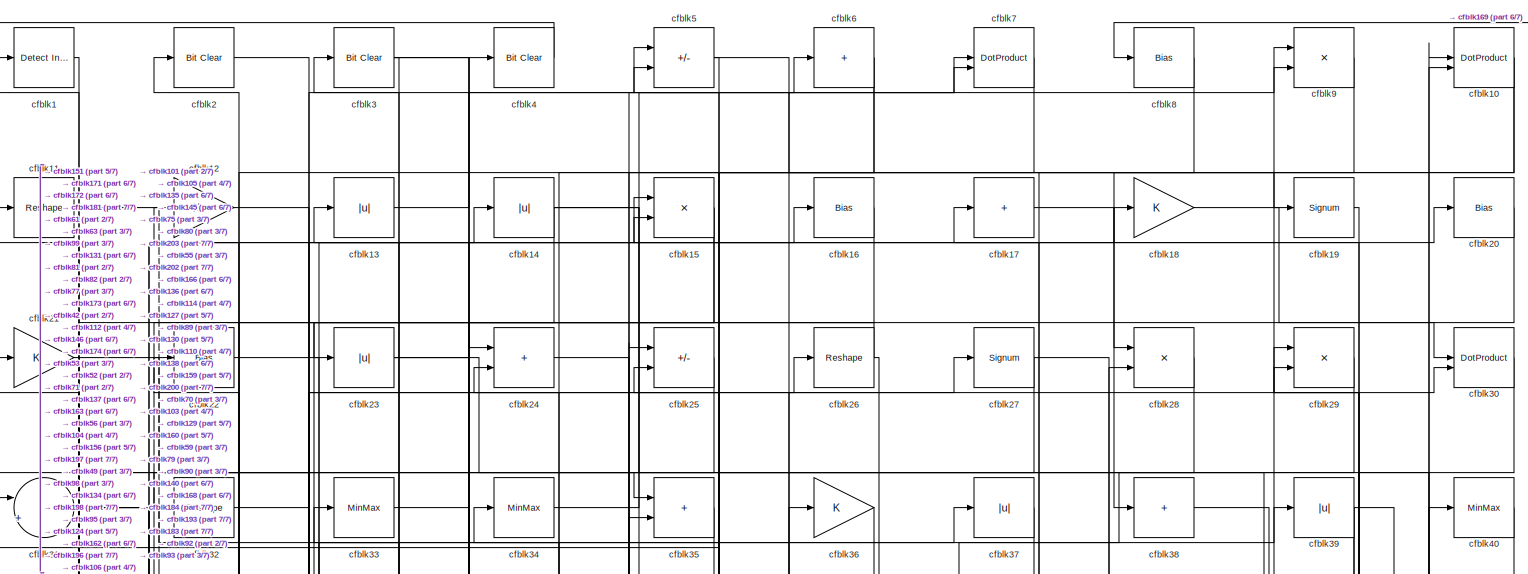
[diagram: root canvas - part 1/7, full width, top band]
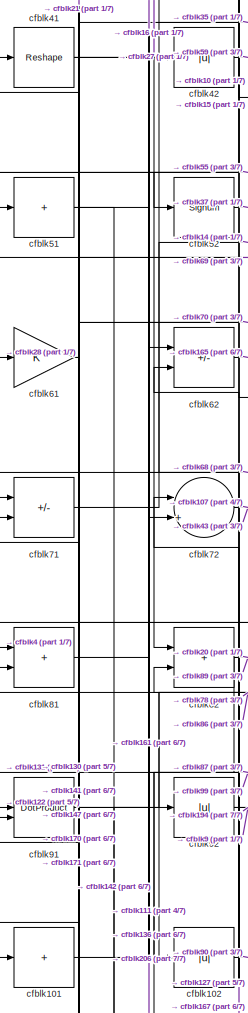
[diagram: root canvas - part 2/7, middle left region]
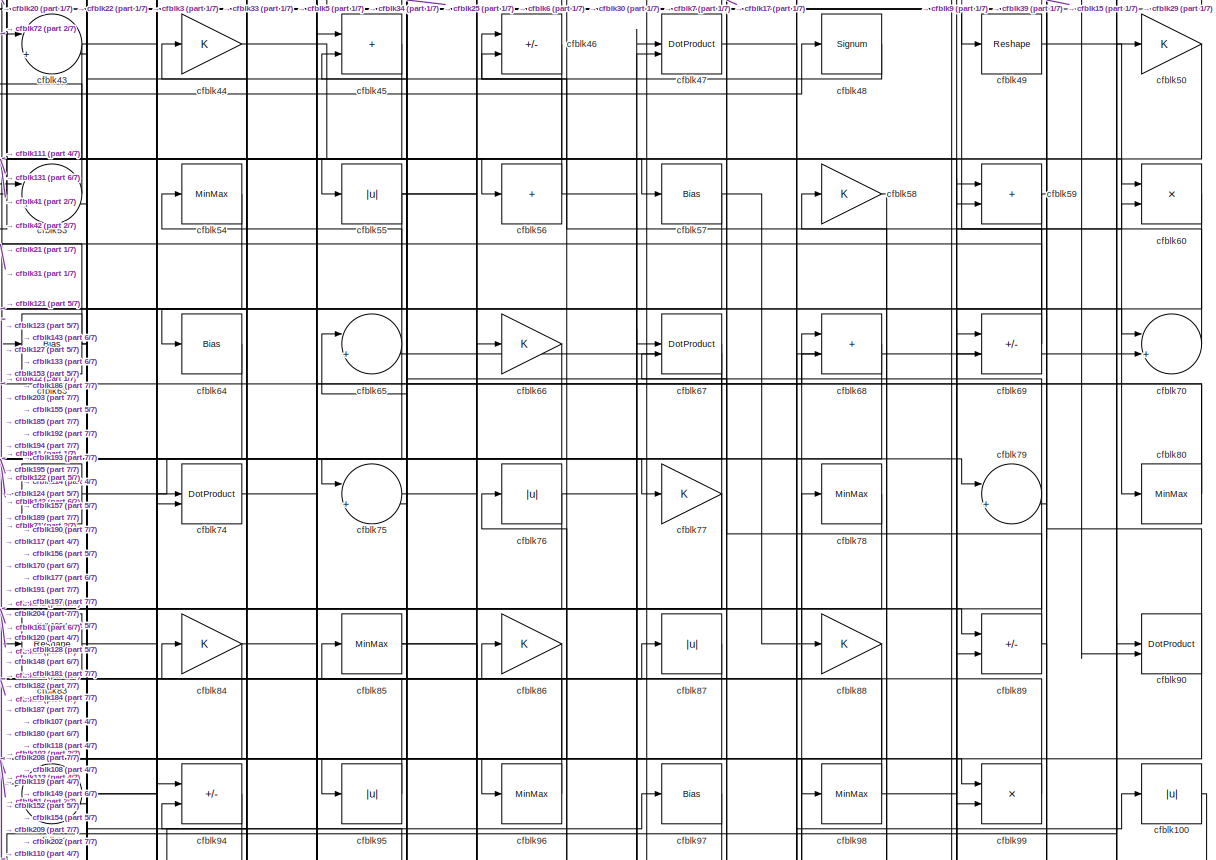
[diagram: root canvas - part 3/7, full width, middle band]
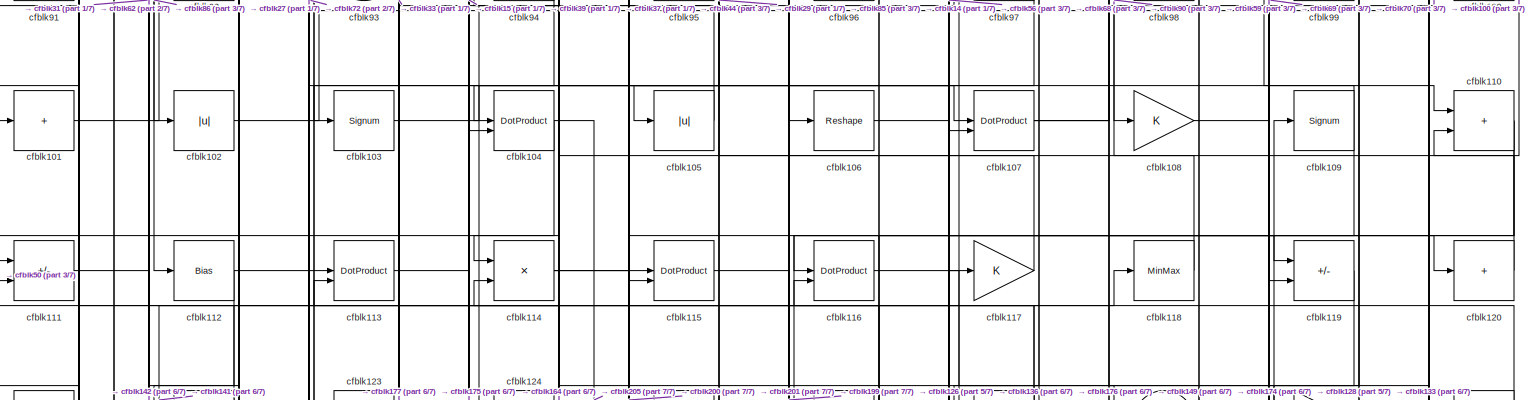
[diagram: root canvas - part 4/7, full width, middle band]
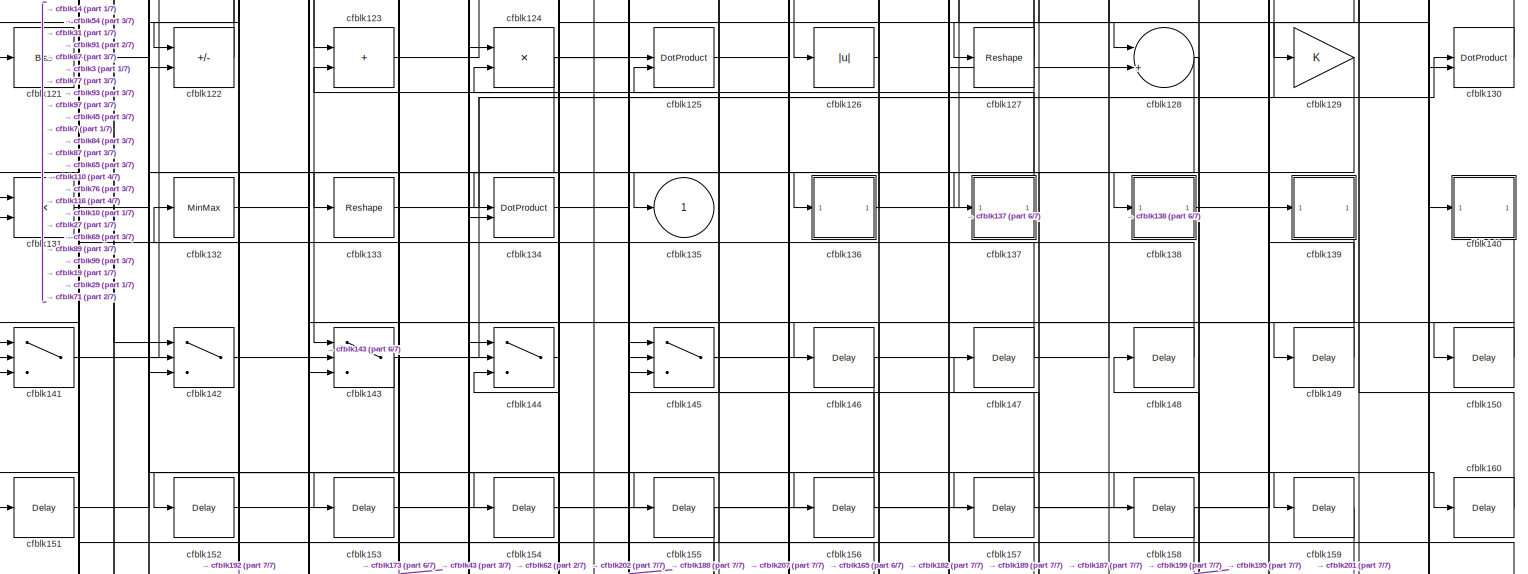
[diagram: root canvas - part 5/7, full width, bottom band]
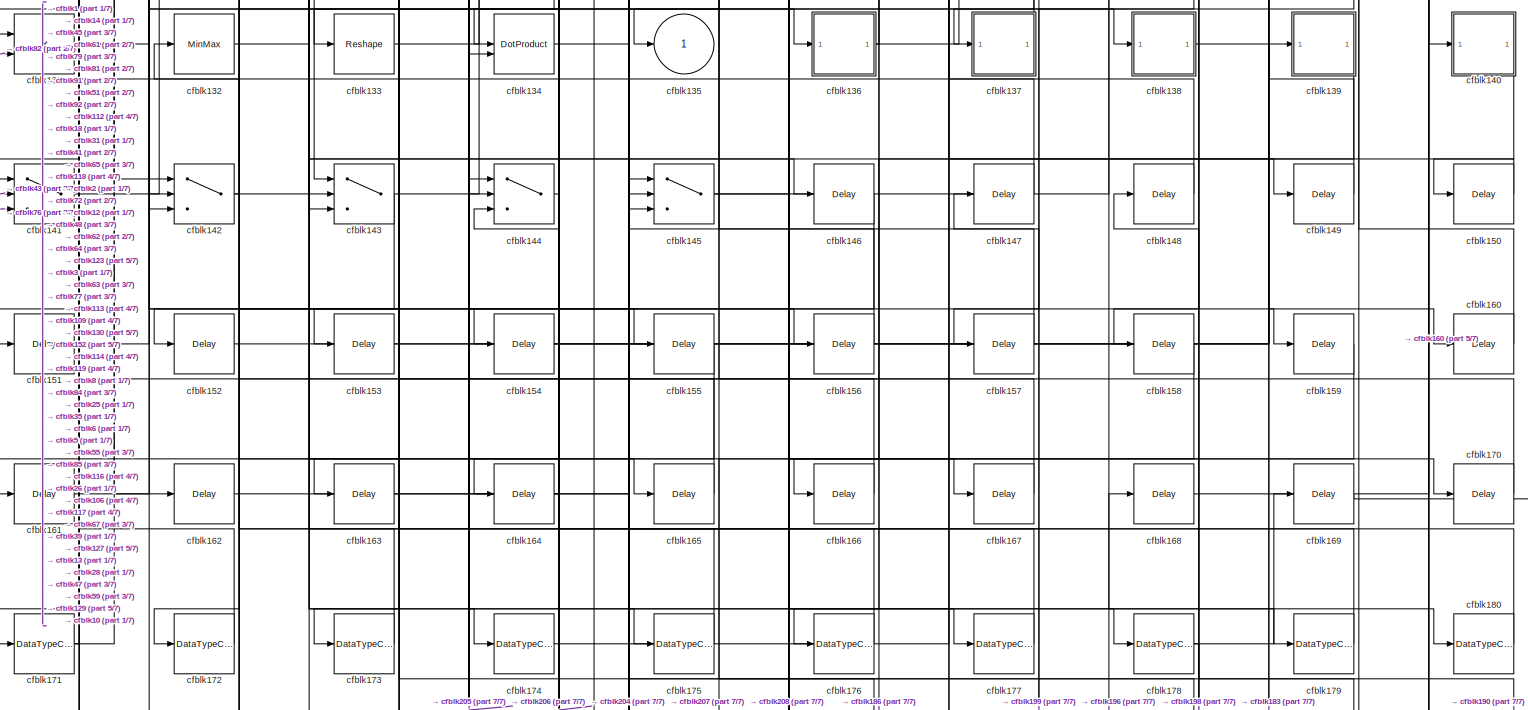
[diagram: root canvas - part 6/7, full width, bottom band]
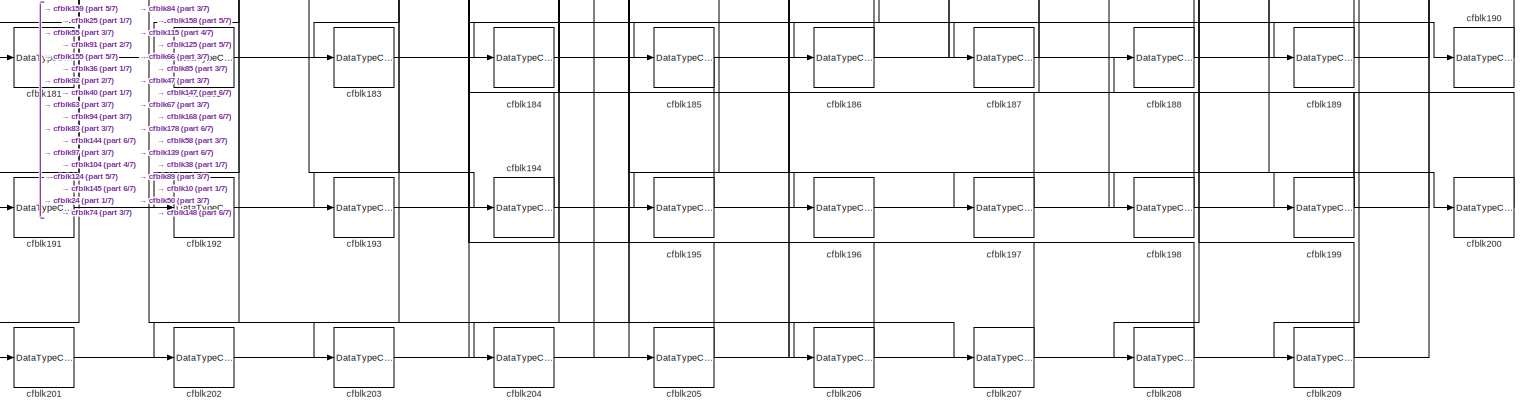
[diagram: root canvas - part 7/7, full width, bottom band]
MODEL slx_1ed5cc50ff1e
KIND model
CONFIG AbsTol = auto
CONFIG EnableMultiTasking = off
CONFIG FixedStep = auto
CONFIG MaxStep = auto
CONFIG MinStep = auto
CONFIG RelTol = 1e-3
CONFIG SampleTimeConstraint = Unconstrained
CONFIG SolverName = VariableStepAuto
CONFIG StartTime = 0.0
CONFIG StopTime = 10.0
BLOCK [Reference] cfblk1  REF=simulink/Logic and Bit
Operations/Detect
Increase
  LibrarySourceBlock = hdlsllib/Logic and Bit\nOperations/Detect\nIncrease
  SourceBlock = simulink/Logic and Bit\nOperations/Detect\nIncrease
  SourceType = Detect Increase
BLOCK [DotProduct] cfblk10
  OutDataTypeStr = Inherit: Inherit via internal rule
BLOCK [Abs] cfblk100
  SaturateOnIntegerOverflow = off
BLOCK [Sum] cfblk101
  IconShape = rectangular
  Inputs = +
BLOCK [Abs] cfblk102
  SaturateOnIntegerOverflow = off
BLOCK [Signum] cfblk103
BLOCK [DotProduct] cfblk104
  OutDataTypeStr = Inherit: Inherit via internal rule
BLOCK [Abs] cfblk105
  SaturateOnIntegerOverflow = off
BLOCK [Reshape] cfblk106
BLOCK [DotProduct] cfblk107
  OutDataTypeStr = Inherit: Inherit via internal rule
BLOCK [Gain] cfblk108
BLOCK [Signum] cfblk109
BLOCK [Reshape] cfblk11
BLOCK [Sum] cfblk110
  IconShape = rectangular
BLOCK [Sum] cfblk111
  IconShape = rectangular
  Inputs = +-
BLOCK [Bias] cfblk112
  Bias = 0.0
  SaturateOnIntegerOverflow = off
BLOCK [DotProduct] cfblk113
  OutDataTypeStr = Inherit: Inherit via internal rule
BLOCK [Product] cfblk114
  Inputs = */
  RndMeth = Zero
  SaturateOnIntegerOverflow = on
BLOCK [DotProduct] cfblk115
  OutDataTypeStr = Inherit: Inherit via internal rule
BLOCK [DotProduct] cfblk116
  OutDataTypeStr = Inherit: Inherit via internal rule
BLOCK [Gain] cfblk117
BLOCK [MinMax] cfblk118
BLOCK [Sum] cfblk119
  IconShape = rectangular
  Inputs = +-
BLOCK [Gain] cfblk12
BLOCK [Sum] cfblk120
  IconShape = rectangular
  Inputs = +
BLOCK [Bias] cfblk121
  Bias = 0.0
  SaturateOnIntegerOverflow = off
BLOCK [Sum] cfblk122
  IconShape = rectangular
  Inputs = +-
BLOCK [Sum] cfblk123
  IconShape = rectangular
BLOCK [Product] cfblk124
  Inputs = */
  RndMeth = Zero
  SaturateOnIntegerOverflow = on
BLOCK [DotProduct] cfblk125
  OutDataTypeStr = Inherit: Inherit via internal rule
BLOCK [Abs] cfblk126
  SaturateOnIntegerOverflow = off
BLOCK [Reshape] cfblk127
BLOCK [Sum] cfblk128
  Inputs = |++
BLOCK [Gain] cfblk129
BLOCK [Abs] cfblk13
  SaturateOnIntegerOverflow = off
BLOCK [DotProduct] cfblk130
  OutDataTypeStr = Inherit: Inherit via internal rule
BLOCK [Product] cfblk131
  Inputs = */
  RndMeth = Zero
  SaturateOnIntegerOverflow = on
BLOCK [MinMax] cfblk132
BLOCK [Reshape] cfblk133
BLOCK [DotProduct] cfblk134
  OutDataTypeStr = Inherit: Inherit via internal rule
BLOCK [Outport] cfblk135
  VectorParamsAs1DForOutWhenUnconnected = off
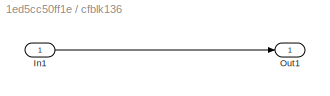
BLOCK [SubSystem] cfblk136
  LibrarySourceBlock = hdlsllib/Ports &\nSubsystems/Subsystem
BLOCK [Inport] cfblk136/In1
BLOCK [Outport] cfblk136/Out1
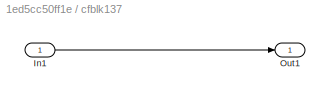
BLOCK [SubSystem] cfblk137
  LibrarySourceBlock = hdlsllib/Ports &\nSubsystems/Subsystem
BLOCK [Inport] cfblk137/In1
BLOCK [Outport] cfblk137/Out1
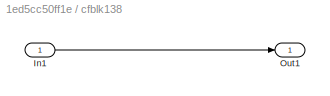
BLOCK [SubSystem] cfblk138
  LibrarySourceBlock = hdlsllib/Ports &\nSubsystems/Subsystem
BLOCK [Inport] cfblk138/In1
BLOCK [Outport] cfblk138/Out1
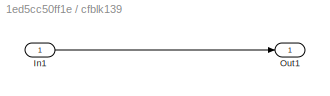
BLOCK [SubSystem] cfblk139
  LibrarySourceBlock = hdlsllib/Ports &\nSubsystems/Subsystem
BLOCK [Inport] cfblk139/In1
BLOCK [Outport] cfblk139/Out1
BLOCK [Abs] cfblk14
  SaturateOnIntegerOverflow = off
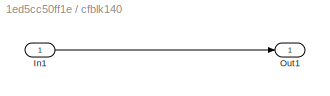
BLOCK [SubSystem] cfblk140
  LibrarySourceBlock = hdlsllib/Ports &\nSubsystems/Subsystem
BLOCK [Inport] cfblk140/In1
BLOCK [Outport] cfblk140/Out1
BLOCK [Switch] cfblk141
  InputSameDT = off
  SaturateOnIntegerOverflow = off
BLOCK [Switch] cfblk142
  InputSameDT = off
  SaturateOnIntegerOverflow = off
BLOCK [Switch] cfblk143
  InputSameDT = off
  SaturateOnIntegerOverflow = off
BLOCK [Switch] cfblk144
  InputSameDT = off
  SaturateOnIntegerOverflow = off
BLOCK [Switch] cfblk145
  InputSameDT = off
  SaturateOnIntegerOverflow = off
BLOCK [Delay] cfblk146
  InputPortMap = u0
  SampleTime = 1
BLOCK [Delay] cfblk147
  InputPortMap = u0
  SampleTime = 1
BLOCK [Delay] cfblk148
  InputPortMap = u0
  SampleTime = 1
BLOCK [Delay] cfblk149
  InputPortMap = u0
  SampleTime = 1
BLOCK [Product] cfblk15
  Inputs = */
  RndMeth = Zero
  SaturateOnIntegerOverflow = on
BLOCK [Delay] cfblk150
  InputPortMap = u0
  SampleTime = 1
BLOCK [Delay] cfblk151
  InputPortMap = u0
  SampleTime = 1
BLOCK [Delay] cfblk152
  InputPortMap = u0
  SampleTime = 1
BLOCK [Delay] cfblk153
  InputPortMap = u0
  SampleTime = 1
BLOCK [Delay] cfblk154
  InputPortMap = u0
  SampleTime = 1
BLOCK [Delay] cfblk155
  InputPortMap = u0
  SampleTime = 1
BLOCK [Delay] cfblk156
  InputPortMap = u0
  SampleTime = 1
BLOCK [Delay] cfblk157
  InputPortMap = u0
  SampleTime = 1
BLOCK [Delay] cfblk158
  InputPortMap = u0
  SampleTime = 1
BLOCK [Delay] cfblk159
  InputPortMap = u0
  SampleTime = 1
BLOCK [Bias] cfblk16
  Bias = 0.0
  SaturateOnIntegerOverflow = off
BLOCK [Delay] cfblk160
  InputPortMap = u0
  SampleTime = 1
BLOCK [Delay] cfblk161
  InputPortMap = u0
  SampleTime = 1
BLOCK [Delay] cfblk162
  InputPortMap = u0
  SampleTime = 1
BLOCK [Delay] cfblk163
  InputPortMap = u0
  SampleTime = 1
BLOCK [Delay] cfblk164
  InputPortMap = u0
  SampleTime = 1
BLOCK [Delay] cfblk165
  InputPortMap = u0
  SampleTime = 1
BLOCK [Delay] cfblk166
  InputPortMap = u0
  SampleTime = 1
BLOCK [Delay] cfblk167
  InputPortMap = u0
  SampleTime = 1
BLOCK [Delay] cfblk168
  InputPortMap = u0
  SampleTime = 1
BLOCK [Delay] cfblk169
  InputPortMap = u0
  SampleTime = 1
BLOCK [Sum] cfblk17
  IconShape = rectangular
  Inputs = +
BLOCK [Delay] cfblk170
  InputPortMap = u0
  SampleTime = 1
BLOCK [DataTypeConversion] cfblk171
  RndMeth = Floor
  SaturateOnIntegerOverflow = off
BLOCK [DataTypeConversion] cfblk172
  OutDataTypeStr = uint8
  RndMeth = Floor
  SaturateOnIntegerOverflow = off
BLOCK [DataTypeConversion] cfblk173
  OutDataTypeStr = boolean
  RndMeth = Floor
  SaturateOnIntegerOverflow = off
BLOCK [DataTypeConversion] cfblk174
  OutDataTypeStr = uint8
  RndMeth = Floor
  SaturateOnIntegerOverflow = off
BLOCK [DataTypeConversion] cfblk175
  OutDataTypeStr = uint8
  RndMeth = Floor
  SaturateOnIntegerOverflow = off
BLOCK [DataTypeConversion] cfblk176
  OutDataTypeStr = uint8
  RndMeth = Floor
  SaturateOnIntegerOverflow = off
BLOCK [DataTypeConversion] cfblk177
  OutDataTypeStr = uint8
  RndMeth = Floor
  SaturateOnIntegerOverflow = off
BLOCK [DataTypeConversion] cfblk178
  RndMeth = Floor
  SaturateOnIntegerOverflow = off
BLOCK [DataTypeConversion] cfblk179
  OutDataTypeStr = uint8
  RndMeth = Floor
  SaturateOnIntegerOverflow = off
BLOCK [Gain] cfblk18
BLOCK [DataTypeConversion] cfblk180
  OutDataTypeStr = uint8
  RndMeth = Floor
  SaturateOnIntegerOverflow = off
BLOCK [DataTypeConversion] cfblk181
  OutDataTypeStr = uint8
  RndMeth = Floor
  SaturateOnIntegerOverflow = off
BLOCK [DataTypeConversion] cfblk182
  OutDataTypeStr = uint8
  RndMeth = Floor
  SaturateOnIntegerOverflow = off
BLOCK [DataTypeConversion] cfblk183
  OutDataTypeStr = uint8
  RndMeth = Floor
  SaturateOnIntegerOverflow = off
BLOCK [DataTypeConversion] cfblk184
  OutDataTypeStr = uint8
  RndMeth = Floor
  SaturateOnIntegerOverflow = off
BLOCK [DataTypeConversion] cfblk185
  OutDataTypeStr = uint8
  RndMeth = Floor
  SaturateOnIntegerOverflow = off
BLOCK [DataTypeConversion] cfblk186
  OutDataTypeStr = uint8
  RndMeth = Floor
  SaturateOnIntegerOverflow = off
BLOCK [DataTypeConversion] cfblk187
  OutDataTypeStr = uint8
  RndMeth = Floor
  SaturateOnIntegerOverflow = off
BLOCK [DataTypeConversion] cfblk188
  OutDataTypeStr = uint8
  RndMeth = Floor
  SaturateOnIntegerOverflow = off
BLOCK [DataTypeConversion] cfblk189
  OutDataTypeStr = uint8
  RndMeth = Floor
  SaturateOnIntegerOverflow = off
BLOCK [Signum] cfblk19
BLOCK [DataTypeConversion] cfblk190
  OutDataTypeStr = uint8
  RndMeth = Floor
  SaturateOnIntegerOverflow = off
BLOCK [DataTypeConversion] cfblk191
  OutDataTypeStr = uint8
  RndMeth = Floor
  SaturateOnIntegerOverflow = off
BLOCK [DataTypeConversion] cfblk192
  OutDataTypeStr = uint8
  RndMeth = Floor
  SaturateOnIntegerOverflow = off
BLOCK [DataTypeConversion] cfblk193
  OutDataTypeStr = uint8
  RndMeth = Floor
  SaturateOnIntegerOverflow = off
BLOCK [DataTypeConversion] cfblk194
  OutDataTypeStr = uint8
  RndMeth = Floor
  SaturateOnIntegerOverflow = off
BLOCK [DataTypeConversion] cfblk195
  OutDataTypeStr = uint8
  RndMeth = Floor
  SaturateOnIntegerOverflow = off
BLOCK [DataTypeConversion] cfblk196
  OutDataTypeStr = uint8
  RndMeth = Floor
  SaturateOnIntegerOverflow = off
BLOCK [DataTypeConversion] cfblk197
  OutDataTypeStr = uint8
  RndMeth = Floor
  SaturateOnIntegerOverflow = off
BLOCK [DataTypeConversion] cfblk198
  OutDataTypeStr = uint8
  RndMeth = Floor
  SaturateOnIntegerOverflow = off
BLOCK [DataTypeConversion] cfblk199
  RndMeth = Floor
  SaturateOnIntegerOverflow = off
BLOCK [Reference] cfblk2  REF=simulink/Logic and Bit
Operations/Bit Clear
  LibrarySourceBlock = hdlsllib/Logic and Bit\nOperations/Bit Clear
  SourceBlock = simulink/Logic and Bit\nOperations/Bit Clear
  SourceType = Bit Clear
BLOCK [Bias] cfblk20
  Bias = 0.0
  SaturateOnIntegerOverflow = off
BLOCK [DataTypeConversion] cfblk200
  OutDataTypeStr = uint8
  RndMeth = Floor
  SaturateOnIntegerOverflow = off
BLOCK [DataTypeConversion] cfblk201
  OutDataTypeStr = uint8
  RndMeth = Floor
  SaturateOnIntegerOverflow = off
BLOCK [DataTypeConversion] cfblk202
  RndMeth = Floor
  SaturateOnIntegerOverflow = off
BLOCK [DataTypeConversion] cfblk203
  OutDataTypeStr = uint8
  RndMeth = Floor
  SaturateOnIntegerOverflow = off
BLOCK [DataTypeConversion] cfblk204
  OutDataTypeStr = uint8
  RndMeth = Floor
  SaturateOnIntegerOverflow = off
BLOCK [DataTypeConversion] cfblk205
  OutDataTypeStr = uint8
  RndMeth = Floor
  SaturateOnIntegerOverflow = off
BLOCK [DataTypeConversion] cfblk206
  OutDataTypeStr = uint8
  RndMeth = Floor
  SaturateOnIntegerOverflow = off
BLOCK [DataTypeConversion] cfblk207
  OutDataTypeStr = uint8
  RndMeth = Floor
  SaturateOnIntegerOverflow = off
BLOCK [DataTypeConversion] cfblk208
  OutDataTypeStr = uint8
  RndMeth = Floor
  SaturateOnIntegerOverflow = off
BLOCK [DataTypeConversion] cfblk209
  OutDataTypeStr = uint8
  RndMeth = Floor
  SaturateOnIntegerOverflow = off
BLOCK [Gain] cfblk21
BLOCK [Bias] cfblk22
  Bias = 0.0
  SaturateOnIntegerOverflow = off
BLOCK [Abs] cfblk23
  SaturateOnIntegerOverflow = off
BLOCK [Sum] cfblk24
  IconShape = rectangular
BLOCK [Sum] cfblk25
  IconShape = rectangular
  Inputs = +-
BLOCK [Reshape] cfblk26
BLOCK [Signum] cfblk27
BLOCK [Product] cfblk28
  Inputs = */
  RndMeth = Zero
  SaturateOnIntegerOverflow = on
BLOCK [Product] cfblk29
  Inputs = */
  RndMeth = Zero
  SaturateOnIntegerOverflow = on
BLOCK [Reference] cfblk3  REF=simulink/Logic and Bit
Operations/Bit Clear
  LibrarySourceBlock = hdlsllib/Logic and Bit\nOperations/Bit Clear
  SourceBlock = simulink/Logic and Bit\nOperations/Bit Clear
  SourceType = Bit Clear
BLOCK [DotProduct] cfblk30
  OutDataTypeStr = Inherit: Inherit via internal rule
BLOCK [Sum] cfblk31
  Inputs = |++
BLOCK [Reshape] cfblk32
BLOCK [MinMax] cfblk33
BLOCK [MinMax] cfblk34
BLOCK [Sum] cfblk35
  IconShape = rectangular
BLOCK [Gain] cfblk36
BLOCK [Abs] cfblk37
  SaturateOnIntegerOverflow = off
BLOCK [Sum] cfblk38
  IconShape = rectangular
  Inputs = +
BLOCK [Abs] cfblk39
  SaturateOnIntegerOverflow = off
BLOCK [Reference] cfblk4  REF=simulink/Logic and Bit
Operations/Bit Clear
  LibrarySourceBlock = hdlsllib/Logic and Bit\nOperations/Bit Clear
  SourceBlock = simulink/Logic and Bit\nOperations/Bit Clear
  SourceType = Bit Clear
BLOCK [MinMax] cfblk40
BLOCK [Reshape] cfblk41
BLOCK [Abs] cfblk42
  SaturateOnIntegerOverflow = off
BLOCK [Sum] cfblk43
  Inputs = |++
BLOCK [Gain] cfblk44
BLOCK [Sum] cfblk45
  IconShape = rectangular
BLOCK [Sum] cfblk46
  IconShape = rectangular
  Inputs = +-
BLOCK [DotProduct] cfblk47
  OutDataTypeStr = Inherit: Inherit via internal rule
BLOCK [Signum] cfblk48
BLOCK [Reshape] cfblk49
BLOCK [Sum] cfblk5
  IconShape = rectangular
  Inputs = +-
BLOCK [Gain] cfblk50
BLOCK [Sum] cfblk51
  IconShape = rectangular
  Inputs = +
BLOCK [Signum] cfblk52
BLOCK [Sum] cfblk53
  Inputs = |++
BLOCK [MinMax] cfblk54
BLOCK [Abs] cfblk55
  SaturateOnIntegerOverflow = off
BLOCK [Sum] cfblk56
  IconShape = rectangular
  Inputs = +
BLOCK [Bias] cfblk57
  Bias = 0.0
  SaturateOnIntegerOverflow = off
BLOCK [Gain] cfblk58
BLOCK [Sum] cfblk59
  IconShape = rectangular
BLOCK [Sum] cfblk6
  IconShape = rectangular
  Inputs = +
BLOCK [Product] cfblk60
  Inputs = */
  RndMeth = Zero
  SaturateOnIntegerOverflow = on
BLOCK [Gain] cfblk61
BLOCK [Sum] cfblk62
  IconShape = rectangular
  Inputs = +-
BLOCK [Bias] cfblk63
  Bias = 0.0
  SaturateOnIntegerOverflow = off
BLOCK [Bias] cfblk64
  Bias = 0.0
  SaturateOnIntegerOverflow = off
BLOCK [Sum] cfblk65
  Inputs = |++
BLOCK [Gain] cfblk66
BLOCK [DotProduct] cfblk67
  OutDataTypeStr = Inherit: Inherit via internal rule
BLOCK [Sum] cfblk68
  IconShape = rectangular
BLOCK [Sum] cfblk69
  IconShape = rectangular
  Inputs = +-
BLOCK [DotProduct] cfblk7
  OutDataTypeStr = Inherit: Inherit via internal rule
BLOCK [Sum] cfblk70
  Inputs = |++
BLOCK [Sum] cfblk71
  IconShape = rectangular
  Inputs = +-
BLOCK [Sum] cfblk72
  Inputs = |++
BLOCK [Signum] cfblk73
BLOCK [DotProduct] cfblk74
  OutDataTypeStr = Inherit: Inherit via internal rule
BLOCK [Sum] cfblk75
  Inputs = |++
BLOCK [Abs] cfblk76
  SaturateOnIntegerOverflow = off
BLOCK [Gain] cfblk77
BLOCK [MinMax] cfblk78
BLOCK [Sum] cfblk79
  Inputs = |++
BLOCK [Bias] cfblk8
  Bias = 0.0
  SaturateOnIntegerOverflow = off
BLOCK [MinMax] cfblk80
BLOCK [Sum] cfblk81
  IconShape = rectangular
BLOCK [Sum] cfblk82
  IconShape = rectangular
BLOCK [Reshape] cfblk83
BLOCK [Gain] cfblk84
BLOCK [MinMax] cfblk85
BLOCK [Gain] cfblk86
BLOCK [Abs] cfblk87
  SaturateOnIntegerOverflow = off
BLOCK [Gain] cfblk88
BLOCK [Sum] cfblk89
  IconShape = rectangular
  Inputs = +-
BLOCK [Product] cfblk9
  Inputs = */
  RndMeth = Zero
  SaturateOnIntegerOverflow = on
BLOCK [DotProduct] cfblk90
  OutDataTypeStr = Inherit: Inherit via internal rule
BLOCK [DotProduct] cfblk91
  OutDataTypeStr = Inherit: Inherit via internal rule
BLOCK [Abs] cfblk92
  SaturateOnIntegerOverflow = off
BLOCK [Sum] cfblk93
  Inputs = |++
BLOCK [Sum] cfblk94
  IconShape = rectangular
  Inputs = +-
BLOCK [Abs] cfblk95
  SaturateOnIntegerOverflow = off
BLOCK [MinMax] cfblk96
BLOCK [Bias] cfblk97
  Bias = 0.0
  SaturateOnIntegerOverflow = off
BLOCK [MinMax] cfblk98
BLOCK [Product] cfblk99
  Inputs = */
  RndMeth = Zero
  SaturateOnIntegerOverflow = on
LINE cfblk100:1 -> cfblk110:2
LINE cfblk101:1 -> cfblk78:1
LINE cfblk102:1 -> cfblk90:1
LINE cfblk103:1 -> cfblk107:1
NET cfblk104:1 -> cfblk111:1, cfblk205:1
LINE cfblk105:1 -> cfblk33:1
LINE cfblk106:1 -> cfblk149:1
NET cfblk107:1 -> cfblk100:1, cfblk70:2
LINE cfblk108:1 -> cfblk69:1
NET cfblk109:1 -> cfblk104:1, cfblk176:1
NET cfblk10:1 -> cfblk127:1, cfblk42:1
NET cfblk110:1 -> cfblk116:1, cfblk126:1
LINE cfblk111:1 -> cfblk62:1
NET cfblk112:1 -> cfblk142:3, cfblk27:1
LINE cfblk113:1 -> cfblk175:1
NET cfblk114:1 -> cfblk119:1, cfblk68:2
LINE cfblk115:1 -> cfblk199:1
LINE cfblk116:1 -> cfblk128:1
LINE cfblk117:1 -> cfblk85:1
LINE cfblk118:1 -> cfblk68:1
LINE cfblk119:1 -> cfblk164:1
LINE cfblk11:1 -> cfblk77:1
LINE cfblk120:1 -> cfblk44:1
LINE cfblk121:1 -> cfblk154:1
LINE cfblk122:1 -> cfblk91:1
LINE cfblk123:1 -> cfblk97:1
NET cfblk124:1 -> cfblk192:1, cfblk207:1, cfblk7:1, cfblk87:1
LINE cfblk125:1 -> cfblk187:1
LINE cfblk126:1 -> cfblk76:1
NET cfblk127:1 -> cfblk173:1, cfblk43:2, cfblk62:2
NET cfblk128:1 -> cfblk157:1, cfblk158:1
LINE cfblk129:1 -> cfblk137:1
LINE cfblk12:1 -> cfblk146:1
LINE cfblk130:1 -> cfblk71:1
NET cfblk131:1 -> cfblk162:1, cfblk18:1
LINE cfblk132:1 -> cfblk178:1
LINE cfblk133:1 -> cfblk109:1
LINE cfblk134:1 -> cfblk179:1
LINE cfblk136/In1:1 -> cfblk136/Out1:1
NET cfblk136:1 -> cfblk116:2, cfblk39:1
LINE cfblk137/In1:1 -> cfblk137/Out1:1
LINE cfblk137:1 -> cfblk13:1
LINE cfblk138/In1:1 -> cfblk138/Out1:1
LINE cfblk138:1 -> cfblk160:1
LINE cfblk139/In1:1 -> cfblk139/Out1:1
LINE cfblk139:1 -> cfblk186:1
LINE cfblk13:1 -> cfblk4:1
LINE cfblk140/In1:1 -> cfblk140/Out1:1
LINE cfblk140:1 -> cfblk150:1
LINE cfblk141:1 -> cfblk118:1
NET cfblk142:1 -> cfblk48:1, cfblk72:1
NET cfblk143:1 -> cfblk130:1, cfblk152:1
LINE cfblk144:1 -> cfblk204:1
NET cfblk145:1 -> cfblk167:1, cfblk28:2
LINE cfblk146:1 -> cfblk172:1
LINE cfblk147:1 -> cfblk91:2
LINE cfblk148:1 -> cfblk67:1
LINE cfblk149:1 -> cfblk59:1
NET cfblk14:1 -> cfblk106:1, cfblk140:1, cfblk151:1
LINE cfblk150:1 -> cfblk143:2
LINE cfblk151:1 -> cfblk122:2
LINE cfblk152:1 -> cfblk89:2
LINE cfblk153:1 -> cfblk69:2
LINE cfblk154:1 -> cfblk99:2
LINE cfblk155:1 -> cfblk182:1
LINE cfblk156:1 -> cfblk65:1
LINE cfblk157:1 -> cfblk45:1
LINE cfblk158:1 -> cfblk195:1
LINE cfblk159:1 -> cfblk201:1
NET cfblk15:1 -> cfblk104:2, cfblk52:1
LINE cfblk160:1 -> cfblk29:2
LINE cfblk161:1 -> cfblk72:2
LINE cfblk162:1 -> cfblk25:1
LINE cfblk163:1 -> cfblk35:2
LINE cfblk164:1 -> cfblk114:2
LINE cfblk165:1 -> cfblk123:2
LINE cfblk166:1 -> cfblk5:2
LINE cfblk167:1 -> cfblk82:2
LINE cfblk168:1 -> cfblk10:2
LINE cfblk169:1 -> cfblk8:1
LINE cfblk16:1 -> cfblk32:1
LINE cfblk170:1 -> cfblk41:1
NET cfblk171:1 -> cfblk81:2, cfblk92:1
LINE cfblk172:1 -> cfblk1:1
LINE cfblk173:1 -> cfblk2:1
LINE cfblk174:1 -> cfblk117:1
LINE cfblk175:1 -> cfblk145:2
LINE cfblk176:1 -> cfblk113:1
LINE cfblk177:1 -> cfblk113:2
NET cfblk178:1 -> cfblk169:1, cfblk198:1
LINE cfblk179:1 -> cfblk132:1
LINE cfblk17:1 -> cfblk38:1
LINE cfblk180:1 -> cfblk84:1
LINE cfblk181:1 -> cfblk47:1
LINE cfblk182:1 -> cfblk47:2
LINE cfblk183:1 -> cfblk139:1
LINE cfblk184:1 -> cfblk40:1
LINE cfblk185:1 -> cfblk188:1
LINE cfblk186:1 -> cfblk83:1
LINE cfblk187:1 -> cfblk67:2
LINE cfblk188:1 -> cfblk125:1
LINE cfblk189:1 -> cfblk125:2
LINE cfblk18:1 -> cfblk30:1
LINE cfblk190:1 -> cfblk148:1
LINE cfblk191:1 -> cfblk74:1
LINE cfblk192:1 -> cfblk74:2
LINE cfblk193:1 -> cfblk10:1
LINE cfblk194:1 -> cfblk94:1
LINE cfblk195:1 -> cfblk94:2
LINE cfblk196:1 -> cfblk168:1
LINE cfblk197:1 -> cfblk24:1
LINE cfblk198:1 -> cfblk24:2
NET cfblk199:1 -> cfblk124:2, cfblk147:1
LINE cfblk19:1 -> cfblk129:1
LINE cfblk1:1 -> cfblk171:1
LINE cfblk200:1 -> cfblk115:1
LINE cfblk201:1 -> cfblk115:2
NET cfblk202:1 -> cfblk124:1, cfblk50:1
LINE cfblk203:1 -> cfblk36:1
LINE cfblk204:1 -> cfblk66:1
LINE cfblk205:1 -> cfblk144:1
LINE cfblk206:1 -> cfblk144:2
LINE cfblk207:1 -> cfblk144:3
LINE cfblk208:1 -> cfblk145:1
LINE cfblk209:1 -> cfblk58:1
LINE cfblk20:1 -> cfblk63:1
LINE cfblk21:1 -> cfblk53:1
LINE cfblk22:1 -> cfblk56:1
NET cfblk23:1 -> cfblk15:2, cfblk35:1
LINE cfblk24:1 -> cfblk196:1
LINE cfblk25:1 -> cfblk181:1
NET cfblk26:1 -> cfblk166:1, cfblk23:1
NET cfblk27:1 -> cfblk130:2, cfblk82:1
LINE cfblk28:1 -> cfblk61:1
LINE cfblk29:1 -> cfblk105:1
LINE cfblk2:1 -> cfblk174:1
LINE cfblk30:1 -> cfblk79:2
NET cfblk31:1 -> cfblk110:1, cfblk138:1, cfblk159:1
LINE cfblk32:1 -> cfblk26:1
LINE cfblk33:1 -> cfblk49:1
LINE cfblk34:1 -> cfblk6:1
LINE cfblk35:1 -> cfblk101:1
LINE cfblk36:1 -> cfblk202:1
LINE cfblk37:1 -> cfblk114:1
LINE cfblk38:1 -> cfblk200:1
NET cfblk39:1 -> cfblk103:1, cfblk134:2, cfblk90:2
NET cfblk3:1 -> cfblk156:1, cfblk163:1, cfblk98:1
LINE cfblk40:1 -> cfblk183:1
NET cfblk41:1 -> cfblk136:1, cfblk55:1, cfblk70:1
LINE cfblk42:1 -> cfblk59:2
NET cfblk43:1 -> cfblk141:2, cfblk57:1
LINE cfblk44:1 -> cfblk60:1
LINE cfblk45:1 -> cfblk131:1
LINE cfblk46:1 -> cfblk64:1
LINE cfblk47:1 -> cfblk180:1
LINE cfblk48:1 -> cfblk46:2
LINE cfblk49:1 -> cfblk80:1
LINE cfblk4:1 -> cfblk81:1
LINE cfblk50:1 -> cfblk111:2
NET cfblk51:1 -> cfblk142:1, cfblk99:1
LINE cfblk52:1 -> cfblk37:1
LINE cfblk53:1 -> cfblk22:1
LINE cfblk54:1 -> cfblk121:1
NET cfblk55:1 -> cfblk170:1, cfblk191:1, cfblk7:2
NET cfblk56:1 -> cfblk120:1, cfblk3:1
NET cfblk57:1 -> cfblk88:1, cfblk93:2
LINE cfblk58:1 -> cfblk208:1
NET cfblk59:1 -> cfblk119:2, cfblk29:1
NET cfblk5:1 -> cfblk135:1, cfblk19:1
LINE cfblk60:1 -> cfblk73:1
NET cfblk61:1 -> cfblk141:1, cfblk21:1
LINE cfblk62:1 -> cfblk165:1
NET cfblk63:1 -> cfblk133:1, cfblk203:1, cfblk31:2
LINE cfblk64:1 -> cfblk143:1
NET cfblk65:1 -> cfblk142:2, cfblk54:1
LINE cfblk66:1 -> cfblk75:1
LINE cfblk67:1 -> cfblk122:1
LINE cfblk68:1 -> cfblk71:2
NET cfblk69:1 -> cfblk46:1, cfblk51:1
NET cfblk6:1 -> cfblk145:3, cfblk75:2
LINE cfblk70:1 -> cfblk9:1
LINE cfblk71:1 -> cfblk14:1
NET cfblk72:1 -> cfblk107:2, cfblk43:1
LINE cfblk73:1 -> cfblk79:1
LINE cfblk74:1 -> cfblk190:1
LINE cfblk75:1 -> cfblk30:2
NET cfblk76:1 -> cfblk128:2, cfblk141:3
NET cfblk77:1 -> cfblk143:3, cfblk153:1, cfblk65:2
LINE cfblk78:1 -> cfblk96:1
NET cfblk79:1 -> cfblk161:1, cfblk31:1
LINE cfblk7:1 -> cfblk95:1
NET cfblk80:1 -> cfblk12:1, cfblk25:2
LINE cfblk81:1 -> cfblk16:1
NET cfblk82:1 -> cfblk131:2, cfblk20:1, cfblk89:1
LINE cfblk83:1 -> cfblk185:1
NET cfblk84:1 -> cfblk123:1, cfblk189:1
NET cfblk85:1 -> cfblk177:1, cfblk197:1
LINE cfblk86:1 -> cfblk112:1
LINE cfblk87:1 -> cfblk102:1
LINE cfblk88:1 -> cfblk93:1
NET cfblk89:1 -> cfblk17:1, cfblk209:1
LINE cfblk8:1 -> cfblk134:1
NET cfblk90:1 -> cfblk108:1, cfblk15:1
NET cfblk91:1 -> cfblk206:1, cfblk86:1
NET cfblk92:1 -> cfblk194:1, cfblk9:2
NET cfblk93:1 -> cfblk155:1, cfblk5:1
LINE cfblk94:1 -> cfblk193:1
LINE cfblk95:1 -> cfblk34:1
LINE cfblk96:1 -> cfblk53:2
LINE cfblk97:1 -> cfblk184:1
NET cfblk98:1 -> cfblk45:2, cfblk60:2
LINE cfblk99:1 -> cfblk11:1
LINE cfblk9:1 -> cfblk28:1
note: NET lines group one-source signal fan-out (src -> all destinations, sorted); 1:1 wires keep LINE
